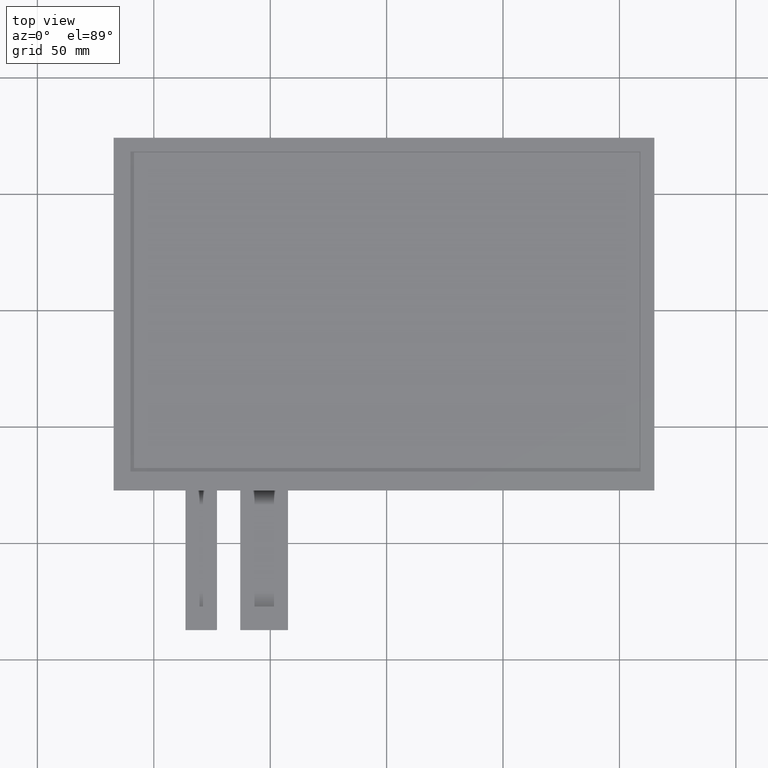
[diagram: clean part render]
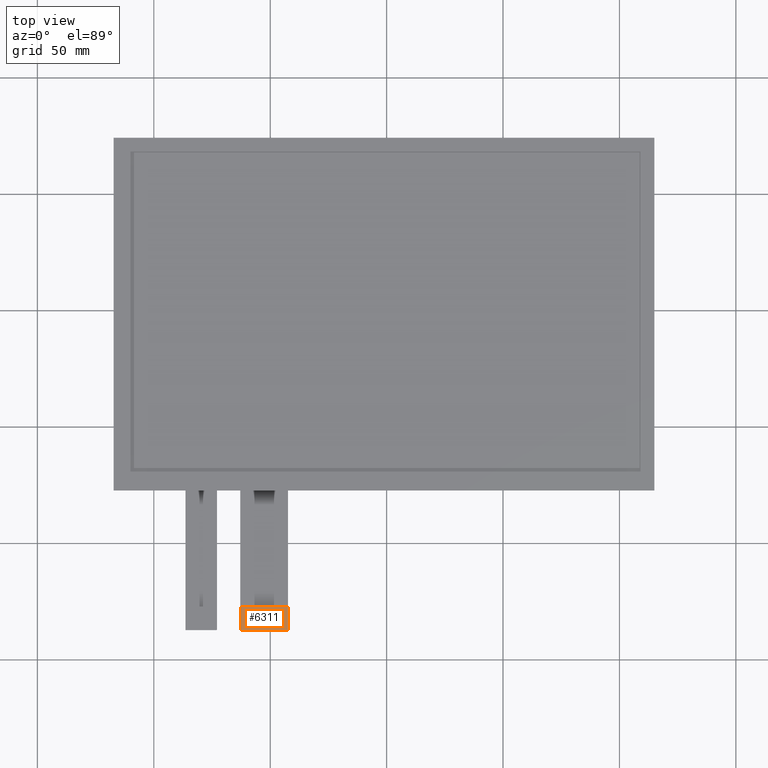
[diagram: same view with one face highlighted and labeled with its STEP entity id]
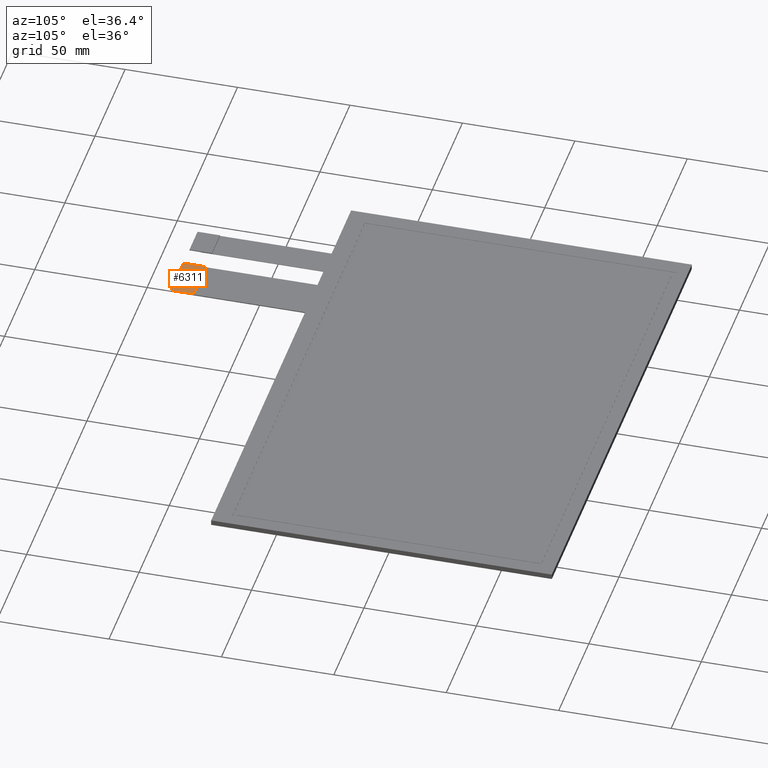
[diagram: same view with one face highlighted and labeled with its STEP entity id]
A machine part, top view. The second image highlights one B-rep face of the part: STEP entity #6311.
A second angle (auxiliary view) of the same face is appended — the face is thin or edge-on in the first view.
In plain terms, the highlighted planar face has unit normal (0, 0, 1).
Its self-contained STEP definition (entity closure, byte-faithful):
#373=PLANE('',#6641);
#675=FACE_OUTER_BOUND('',#977,.T.);
#977=EDGE_LOOP('',(#5902,#5903,#5904,#5905,#5906,#5907));
#1012=LINE('',#8188,#1892);
#1827=LINE('',#9831,#2707);
#1833=LINE('',#9843,#2713);
#1835=LINE('',#9846,#2715);
#1892=VECTOR('',#6684,10.);
#2707=VECTOR('',#8057,10.);
#2713=VECTOR('',#8065,10.);
#2715=VECTOR('',#8069,10.);
#2767=CIRCLE('',#6358,0.2);
#2768=CIRCLE('',#6362,0.2);
#2776=VERTEX_POINT('',#8173);
#2777=VERTEX_POINT('',#8175);
#2781=VERTEX_POINT('',#8187);
#2942=VERTEX_POINT('',#8511);
#3330=VERTEX_POINT('',#9830);
#3335=VERTEX_POINT('',#9842);
#3368=EDGE_CURVE('',#2776,#2777,#2767,.T.);
#3374=EDGE_CURVE('',#2781,#2777,#1012,.T.);
#3536=EDGE_CURVE('',#2781,#2942,#2768,.T.);
#4195=EDGE_CURVE('',#3330,#2942,#1827,.T.);
#4201=EDGE_CURVE('',#3335,#3330,#1833,.T.);
#4203=EDGE_CURVE('',#2776,#3335,#1835,.T.);
#5902=ORIENTED_EDGE('',*,*,#3368,.F.);
#5903=ORIENTED_EDGE('',*,*,#4203,.T.);
#5904=ORIENTED_EDGE('',*,*,#4201,.T.);
#5905=ORIENTED_EDGE('',*,*,#4195,.T.);
#5906=ORIENTED_EDGE('',*,*,#3536,.F.);
#5907=ORIENTED_EDGE('',*,*,#3374,.T.);
#6311=ADVANCED_FACE('',(#675),#373,.T.);
#6358=AXIS2_PLACEMENT_3D('',#8176,#6673,#6674);
#6362=AXIS2_PLACEMENT_3D('',#8512,#6848,#6849);
#6641=AXIS2_PLACEMENT_3D('',#9845,#8067,#8068);
#6673=DIRECTION('center_axis',(0.,0.,-1.));
#6674=DIRECTION('ref_axis',(0.707106781186548,-0.707106781186548,0.));
#6684=DIRECTION('',(1.,0.,0.));
#6848=DIRECTION('center_axis',(0.,0.,-1.));
#6849=DIRECTION('ref_axis',(-0.707106781186548,-0.707106781186548,0.));
#8057=DIRECTION('',(0.,-1.,0.));
#8065=DIRECTION('',(-1.,0.,0.));
#8067=DIRECTION('center_axis',(0.,0.,1.));
#8068=DIRECTION('ref_axis',(1.,0.,0.));
#8069=DIRECTION('',(0.,1.,0.));
#8173=CARTESIAN_POINT('',(-42.38,-137.11,-0.8));
#8175=CARTESIAN_POINT('',(-42.58,-137.31,-0.8));
#8176=CARTESIAN_POINT('Origin',(-42.58,-137.11,-0.8));
#8187=CARTESIAN_POINT('',(-62.68,-137.31,-0.8));
#8188=CARTESIAN_POINT('',(-62.88,-137.31,-0.8));
#8511=CARTESIAN_POINT('',(-62.88,-137.11,-0.8));
#8512=CARTESIAN_POINT('Origin',(-62.68,-137.11,-0.8));
#9830=CARTESIAN_POINT('',(-62.88,-127.31,-0.8));
#9831=CARTESIAN_POINT('',(-62.88,-127.31,-0.8));
#9842=CARTESIAN_POINT('',(-42.38,-127.31,-0.8));
#9843=CARTESIAN_POINT('',(-42.38,-127.31,-0.8));
#9845=CARTESIAN_POINT('Origin',(-52.63,-132.31,-0.8));
#9846=CARTESIAN_POINT('',(-42.38,-137.31,-0.8));